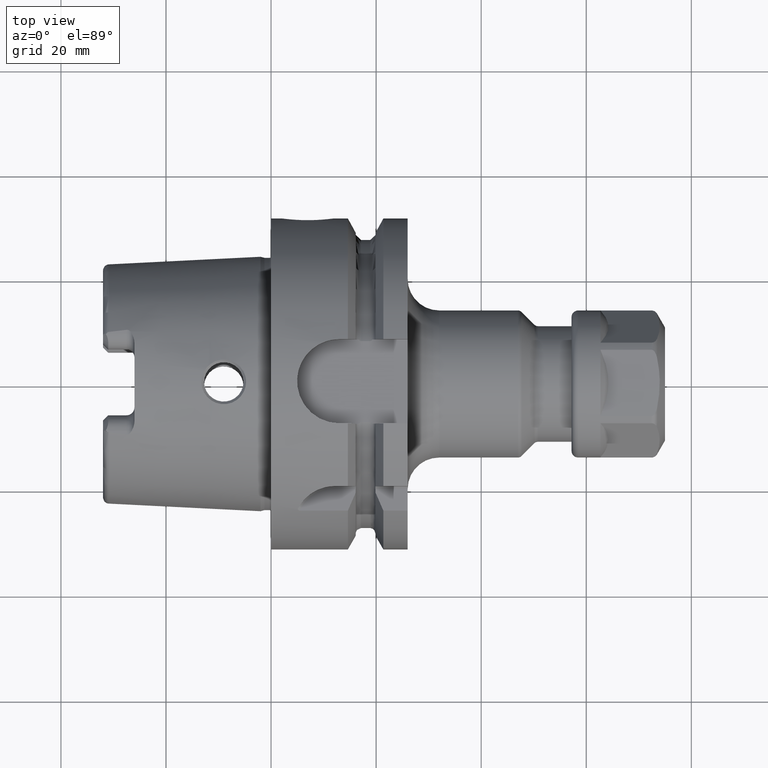
[diagram: clean part render]
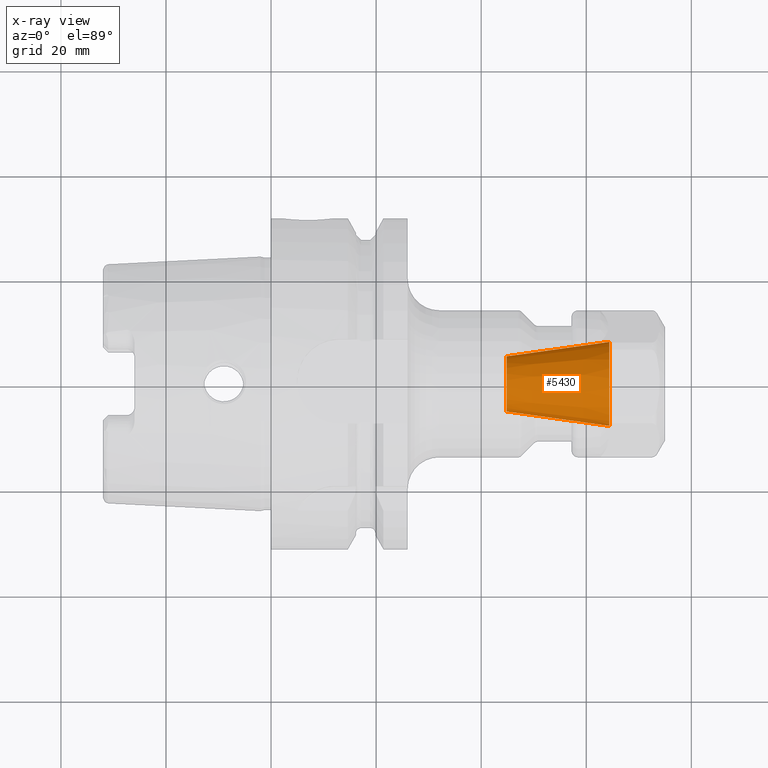
[diagram: x-ray — body ghosted, one internal face saturated and labeled with its STEP entity id]
A machine part, top view, then the same camera in x-ray: the body is ghosted and one INTERNAL B-rep face — a face not visible from any outside direction — is saturated and labeled: STEP entity #5430.
In plain terms, the highlighted conical surface has half-angle 8 deg.
Its self-contained STEP definition (entity closure, byte-faithful):
#2070=CARTESIAN_POINT('',(6.44E1,0.E0,0.E0));
#2071=DIRECTION('',(1.E0,0.E0,0.E0));
#2072=DIRECTION('',(0.E0,1.E0,0.E0));
#2073=AXIS2_PLACEMENT_3D('',#2070,#2071,#2072);
#2080=DIRECTION('',(-9.902680687416E-1,1.391731009601E-1,0.E0));
#2081=VECTOR('',#2080,1.975956546940E1);
#2082=CARTESIAN_POINT('',(6.44E1,-8.E0,0.E0));
#2083=LINE('',#2082,#2081);
#2084=DIRECTION('',(-9.902680687416E-1,-1.391731009601E-1,0.E0));
#2085=VECTOR('',#2084,1.975956546940E1);
#2086=CARTESIAN_POINT('',(6.44E1,8.E0,0.E0));
#2087=LINE('',#2086,#2085);
#2101=CARTESIAN_POINT('',(4.483273326344E1,0.E0,0.E0));
#2102=DIRECTION('',(1.E0,0.E0,0.E0));
#2103=DIRECTION('',(0.E0,1.E0,0.E0));
#2104=AXIS2_PLACEMENT_3D('',#2101,#2102,#2103);
#3140=CARTESIAN_POINT('',(4.483273326344E1,5.25E0,0.E0));
#3142=VERTEX_POINT('',#3140);
#3144=CARTESIAN_POINT('',(4.483273326344E1,-5.25E0,0.E0));
#3146=VERTEX_POINT('',#3144);
#3148=CARTESIAN_POINT('',(6.44E1,8.E0,0.E0));
#3149=CARTESIAN_POINT('',(6.44E1,-8.E0,0.E0));
#3150=VERTEX_POINT('',#3148);
#3151=VERTEX_POINT('',#3149);
#5416=CARTESIAN_POINT('',(5.461636663172E1,0.E0,0.E0));
#5417=DIRECTION('',(1.E0,0.E0,0.E0));
#5418=DIRECTION('',(0.E0,-1.E0,0.E0));
#5419=AXIS2_PLACEMENT_3D('',#5416,#5417,#5418);
#5420=CONICAL_SURFACE('',#5419,6.625E0,8.E0);
#5421=ORIENTED_EDGE('',*,*,#5409,.F.);
#5423=ORIENTED_EDGE('',*,*,#5422,.T.);
#5425=ORIENTED_EDGE('',*,*,#5424,.T.);
#5427=ORIENTED_EDGE('',*,*,#5426,.F.);
#5428=EDGE_LOOP('',(#5421,#5423,#5425,#5427));
#5429=FACE_OUTER_BOUND('',#5428,.F.);
#5430=ADVANCED_FACE('',(#5429),#5420,.F.);
#2074=CIRCLE('',#2073,8.E0);
#2105=CIRCLE('',#2104,5.25E0);
#5409=EDGE_CURVE('',#3150,#3151,#2074,.T.);
#5422=EDGE_CURVE('',#3150,#3142,#2087,.T.);
#5424=EDGE_CURVE('',#3142,#3146,#2105,.T.);
#5426=EDGE_CURVE('',#3151,#3146,#2083,.T.);